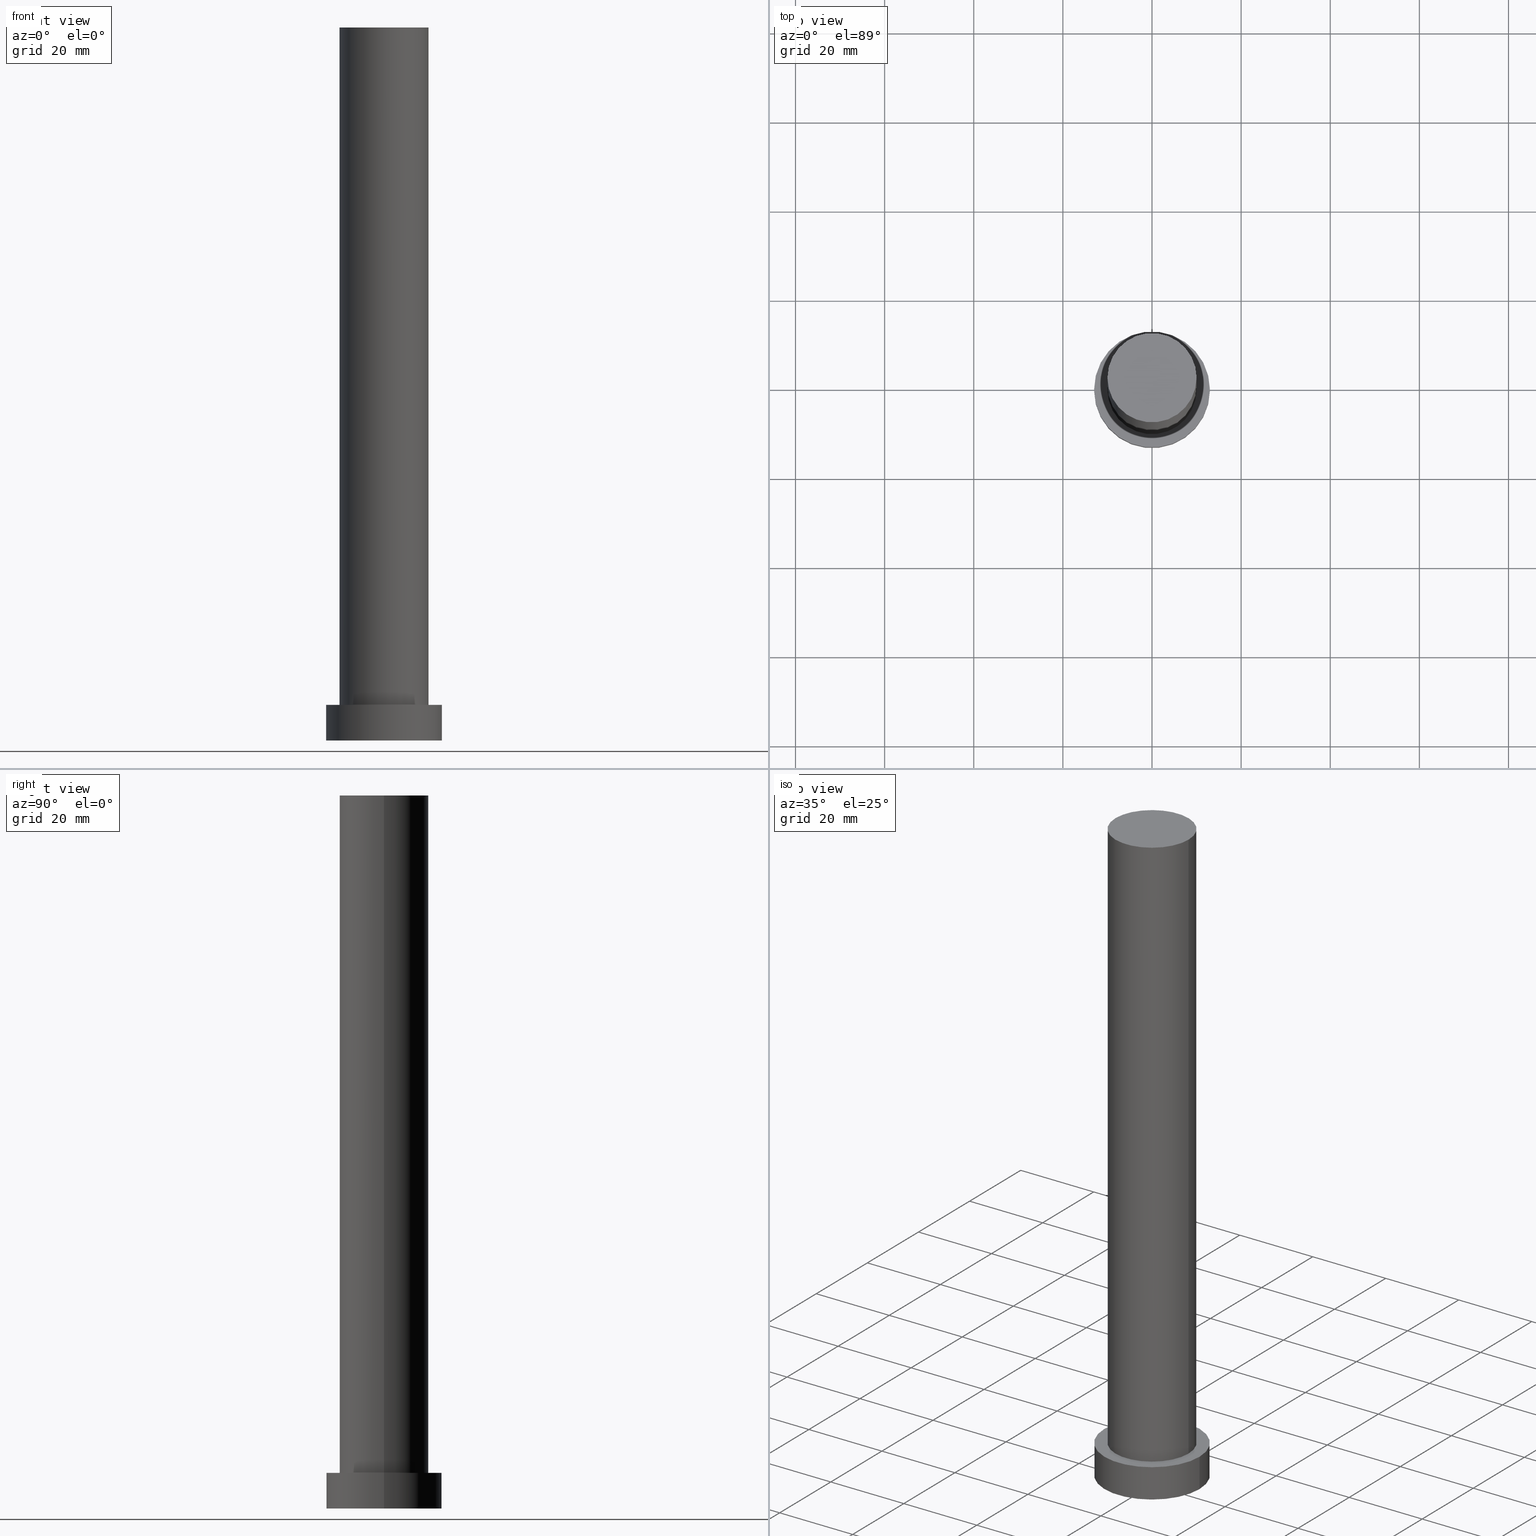
[diagram: canonical four-view strip — front | top / right | iso, engineering-drawing reading convention]
A machine part, canonical four-view strip (front | top / right | iso — engineering-drawing reading convention). The complete STEP part file that produces these views, byte-faithful:
ISO-10303-21;
HEADER;
FILE_DESCRIPTION (( 'STEP AP203' ),
    '1' );
FILE_NAME ('9e28.STEP',
    '2023-02-13T07:34:28',
    ( '' ),
    ( '' ),
    'SwSTEP 2.0',
    'SolidWorks 2019',
    '' );
FILE_SCHEMA (( 'CONFIG_CONTROL_DESIGN' ));
ENDSEC;

DATA;
#1 = CARTESIAN_POINT ( 'NONE',  ( -10.00000000000000000, 0.000000000000000000, 160.0000000000000000 ) ) ;
#2 = CARTESIAN_POINT ( 'NONE',  ( -13.00000000000000178, 0.000000000000000000, 0.000000000000000000 ) ) ;
#3 = ORIENTED_EDGE ( 'NONE', *, *, #37, .T. ) ;
#4 = PERSON_AND_ORGANIZATION_ROLE ( 'design_supplier' ) ;
#5 = PERSON_AND_ORGANIZATION_ROLE ( 'design_owner' ) ;
#6 = PLANE ( 'NONE',  #111 ) ;
#7 = AXIS2_PLACEMENT_3D ( 'NONE', #228, #109, #84 ) ;
#8 = DATE_AND_TIME ( #152, #165 ) ;
#9 = EDGE_CURVE ( 'NONE', #28, #254, #181, .T. ) ;
#10 = UNCERTAINTY_MEASURE_WITH_UNIT (LENGTH_MEASURE( 1.000000000000000082E-05 ), #157, 'distance_accuracy_value', 'NONE');
#11 = FACE_OUTER_BOUND ( 'NONE', #201, .T. ) ;
#12 = PERSON_AND_ORGANIZATION_ROLE ( 'creator' ) ;
#13 = CYLINDRICAL_SURFACE ( 'NONE', #140, 10.00000000000000000 ) ;
#14 = CC_DESIGN_PERSON_AND_ORGANIZATION_ASSIGNMENT ( #166, #12, ( #244 ) ) ;
#15 = CARTESIAN_POINT ( 'NONE',  ( 13.00000000000000178, 1.592040838891559293E-15, 0.000000000000000000 ) ) ;
#16 =( GEOMETRIC_REPRESENTATION_CONTEXT ( 3 ) GLOBAL_UNCERTAINTY_ASSIGNED_CONTEXT ( ( #10 ) ) GLOBAL_UNIT_ASSIGNED_CONTEXT ( ( #157, #65, #21 ) ) REPRESENTATION_CONTEXT ( 'NONE', 'WORKASPACE' ) );
#17 = ADVANCED_FACE ( 'NONE', ( #11 ), #6, .T. ) ;
#18 = APPROVAL_STATUS ( 'not_yet_approved' ) ;
#19 = CARTESIAN_POINT ( 'NONE',  ( -10.00000000000000000, 0.000000000000000000, 160.0000000000000000 ) ) ;
#20 = LOCAL_TIME ( 8, 34, 28.00000000000000000, #119 ) ;
#21 =( NAMED_UNIT ( * ) SI_UNIT ( $, .STERADIAN. ) SOLID_ANGLE_UNIT ( ) );
#22 = CARTESIAN_POINT ( 'NONE',  ( 0.000000000000000000, 0.000000000000000000, 8.000000000000000000 ) ) ;
#23 = DATE_AND_TIME ( #115, #158 ) ;
#24 = VECTOR ( 'NONE', #168, 1000.000000000000000 ) ;
#25 = CARTESIAN_POINT ( 'NONE',  ( 0.000000000000000000, 0.000000000000000000, 8.000000000000000000 ) ) ;
#26 = CC_DESIGN_PERSON_AND_ORGANIZATION_ASSIGNMENT ( #154, #208, ( #250 ) ) ;
#27 = ORIENTED_EDGE ( 'NONE', *, *, #170, .F. ) ;
#28 = VERTEX_POINT ( 'NONE', #184 ) ;
#29 = ADVANCED_FACE ( 'NONE', ( #125 ), #167, .T. ) ;
#30 = APPROVAL_DATE_TIME ( #8, #188 ) ;
#31 = ADVANCED_FACE ( 'NONE', ( #56 ), #13, .T. ) ;
#32 = ORIENTED_EDGE ( 'NONE', *, *, #229, .T. ) ;
#33 = AXIS2_PLACEMENT_3D ( 'NONE', #118, #83, #50 ) ;
#34 = CC_DESIGN_APPROVAL ( #188, ( #117 ) ) ;
#35 = APPLICATION_CONTEXT ( 'configuration controlled 3d designs of mechanical parts and assemblies' ) ;
#36 = DIRECTION ( 'NONE',  ( -1.000000000000000000, 0.000000000000000000, 0.000000000000000000 ) ) ;
#37 = EDGE_CURVE ( 'NONE', #58, #254, #249, .T. ) ;
#38 = CIRCLE ( 'NONE', #176, 10.00000000000000000 ) ;
#39 = MANIFOLD_SOLID_BREP ( 'P�idat vysunut�m3', #126 ) ;
#40 = CALENDAR_DATE ( 2023, 13, 2 ) ;
#41 = PERSON_AND_ORGANIZATION_ROLE ( 'classification_officer' ) ;
#42 = EDGE_LOOP ( 'NONE', ( #120, #62, #51, #230 ) ) ;
#43 = EDGE_CURVE ( 'NONE', #254, #58, #148, .T. ) ;
#44 = DIRECTION ( 'NONE',  ( 0.000000000000000000, 0.000000000000000000, 1.000000000000000000 ) ) ;
#45 = ORIENTED_EDGE ( 'NONE', *, *, #37, .F. ) ;
#46 = CC_DESIGN_PERSON_AND_ORGANIZATION_ASSIGNMENT ( #59, #4, ( #250 ) ) ;
#47 = FACE_OUTER_BOUND ( 'NONE', #42, .T. ) ;
#48 = PRODUCT ( '9e28', '9e28', '', ( #101 ) ) ;
#49 = COORDINATED_UNIVERSAL_TIME_OFFSET ( 1, 0, .AHEAD. ) ;
#50 = DIRECTION ( 'NONE',  ( 1.000000000000000000, 0.000000000000000000, 0.000000000000000000 ) ) ;
#51 = ORIENTED_EDGE ( 'NONE', *, *, #9, .T. ) ;
#52 = APPROVAL_ROLE ( '' ) ;
#53 = EDGE_LOOP ( 'NONE', ( #151, #57, #3, #209 ) ) ;
#54 = APPROVAL ( #74, 'NEUR�EN�' ) ;
#55 = AXIS2_PLACEMENT_3D ( 'NONE', #173, #216, #160 ) ;
#56 = FACE_OUTER_BOUND ( 'NONE', #112, .T. ) ;
#57 = ORIENTED_EDGE ( 'NONE', *, *, #187, .T. ) ;
#58 = VERTEX_POINT ( 'NONE', #15 ) ;
#59 = PERSON_AND_ORGANIZATION ( #97, #90 ) ;
#60 = LOCAL_TIME ( 8, 34, 28.00000000000000000, #207 ) ;
#61 = EDGE_CURVE ( 'NONE', #199, #211, #161, .T. ) ;
#62 = ORIENTED_EDGE ( 'NONE', *, *, #238, .F. ) ;
#63 = DIRECTION ( 'NONE',  ( -0.000000000000000000, -0.000000000000000000, -1.000000000000000000 ) ) ;
#64 = CARTESIAN_POINT ( 'NONE',  ( 0.000000000000000000, 0.000000000000000000, 8.000000000000000000 ) ) ;
#65 =( NAMED_UNIT ( * ) PLANE_ANGLE_UNIT ( ) SI_UNIT ( $, .RADIAN. ) );
#66 = DIRECTION ( 'NONE',  ( -0.000000000000000000, -0.000000000000000000, -1.000000000000000000 ) ) ;
#67 = APPROVAL_STATUS ( 'not_yet_approved' ) ;
#68 = LINE ( 'NONE', #138, #146 ) ;
#69 = CC_DESIGN_DATE_AND_TIME_ASSIGNMENT ( #110, #214, ( #117 ) ) ;
#70 = CARTESIAN_POINT ( 'NONE',  ( 0.000000000000000000, 0.000000000000000000, 160.0000000000000000 ) ) ;
#71 = DIRECTION ( 'NONE',  ( 0.000000000000000000, 0.000000000000000000, 1.000000000000000000 ) ) ;
#72 = CARTESIAN_POINT ( 'NONE',  ( 0.000000000000000000, 0.000000000000000000, 160.0000000000000000 ) ) ;
#73 = ORIENTED_EDGE ( 'NONE', *, *, #222, .T. ) ;
#74 = APPROVAL_STATUS ( 'not_yet_approved' ) ;
#75 = CC_DESIGN_APPROVAL ( #54, ( #250 ) ) ;
#76 = CARTESIAN_POINT ( 'NONE',  ( -10.00000000000000000, 0.000000000000000000, 8.000000000000000000 ) ) ;
#77 = SECURITY_CLASSIFICATION_LEVEL ( 'unclassified' ) ;
#78 = CARTESIAN_POINT ( 'NONE',  ( 0.000000000000000000, 0.000000000000000000, 0.000000000000000000 ) ) ;
#79 = DATE_AND_TIME ( #143, #20 ) ;
#80 = ORIENTED_EDGE ( 'NONE', *, *, #86, .F. ) ;
#81 = APPLICATION_PROTOCOL_DEFINITION ( 'international standard', 'config_control_design', 1994, #35 ) ;
#82 = ADVANCED_FACE ( 'NONE', ( #223 ), #174, .F. ) ;
#83 = DIRECTION ( 'NONE',  ( 0.000000000000000000, 0.000000000000000000, 1.000000000000000000 ) ) ;
#84 = DIRECTION ( 'NONE',  ( 1.000000000000000000, 0.000000000000000000, 0.000000000000000000 ) ) ;
#85 = DATE_TIME_ROLE ( 'creation_date' ) ;
#86 = EDGE_CURVE ( 'NONE', #164, #211, #87, .T. ) ;
#87 = CIRCLE ( 'NONE', #132, 10.00000000000000000 ) ;
#88 = SHAPE_DEFINITION_REPRESENTATION ( #220, #145 ) ;
#89 = DIRECTION ( 'NONE',  ( 1.000000000000000000, 0.000000000000000000, -0.000000000000000000 ) ) ;
#90 = ORGANIZATION ( 'NEUR�EN�', 'NEUR�EN�', '' ) ;
#91 = ORIENTED_EDGE ( 'NONE', *, *, #170, .T. ) ;
#92 = ORIENTED_EDGE ( 'NONE', *, *, #43, .F. ) ;
#93 = COORDINATED_UNIVERSAL_TIME_OFFSET ( 1, 0, .AHEAD. ) ;
#94 = DIRECTION ( 'NONE',  ( 0.000000000000000000, 0.000000000000000000, 1.000000000000000000 ) ) ;
#95 = CARTESIAN_POINT ( 'NONE',  ( 0.000000000000000000, 0.000000000000000000, 8.000000000000000000 ) ) ;
#96 = ORIENTED_EDGE ( 'NONE', *, *, #217, .T. ) ;
#97 = PERSON ( 'NEUR�EN�', 'NEUR�EN�', 'NEUR�EN�', ('NEUR�EN�'), ('NEUR�EN�'), ('NEUR�EN�') ) ;
#98 = DIRECTION ( 'NONE',  ( -1.000000000000000000, 0.000000000000000000, 0.000000000000000000 ) ) ;
#99 = EDGE_CURVE ( 'NONE', #204, #164, #192, .T. ) ;
#100 = DIRECTION ( 'NONE',  ( 1.000000000000000000, 0.000000000000000000, 0.000000000000000000 ) ) ;
#101 = MECHANICAL_CONTEXT ( 'NONE', #245, 'mechanical' ) ;
#102 = EDGE_LOOP ( 'NONE', ( #147, #73 ) ) ;
#103 = CIRCLE ( 'NONE', #104, 10.00000000000000000 ) ;
#104 = AXIS2_PLACEMENT_3D ( 'NONE', #139, #197, #193 ) ;
#105 = CC_DESIGN_DATE_AND_TIME_ASSIGNMENT ( #79, #85, ( #244 ) ) ;
#106 = AXIS2_PLACEMENT_3D ( 'NONE', #72, #206, #227 ) ;
#107 = CARTESIAN_POINT ( 'NONE',  ( -13.00000000000000178, 0.000000000000000000, 8.000000000000000000 ) ) ;
#108 = DIRECTION ( 'NONE',  ( 0.000000000000000000, 0.000000000000000000, 1.000000000000000000 ) ) ;
#109 = DIRECTION ( 'NONE',  ( 0.000000000000000000, 0.000000000000000000, 1.000000000000000000 ) ) ;
#110 = DATE_AND_TIME ( #40, #60 ) ;
#111 = AXIS2_PLACEMENT_3D ( 'NONE', #242, #71, #89 ) ;
#112 = EDGE_LOOP ( 'NONE', ( #27, #149, #96, #205 ) ) ;
#113 = FACE_OUTER_BOUND ( 'NONE', #102, .T. ) ;
#114 = DIRECTION ( 'NONE',  ( 0.000000000000000000, 0.000000000000000000, 1.000000000000000000 ) ) ;
#115 = CALENDAR_DATE ( 2023, 13, 2 ) ;
#116 = DIRECTION ( 'NONE',  ( 0.000000000000000000, 0.000000000000000000, 1.000000000000000000 ) ) ;
#117 = SECURITY_CLASSIFICATION ( '', '', #77 ) ;
#118 = CARTESIAN_POINT ( 'NONE',  ( 0.000000000000000000, 0.000000000000000000, 8.000000000000000000 ) ) ;
#119 = COORDINATED_UNIVERSAL_TIME_OFFSET ( 1, 0, .AHEAD. ) ;
#120 = ORIENTED_EDGE ( 'NONE', *, *, #187, .F. ) ;
#121 = CC_DESIGN_PERSON_AND_ORGANIZATION_ASSIGNMENT ( #239, #5, ( #48 ) ) ;
#122 = ORIENTED_EDGE ( 'NONE', *, *, #61, .F. ) ;
#123 = ADVANCED_FACE ( 'NONE', ( #172, #113 ), #171, .T. ) ;
#124 = CARTESIAN_POINT ( 'NONE',  ( 0.000000000000000000, 0.000000000000000000, 0.000000000000000000 ) ) ;
#125 = FACE_OUTER_BOUND ( 'NONE', #169, .T. ) ;
#126 = CLOSED_SHELL ( 'NONE', ( #31, #144, #131, #123, #82, #29, #17 ) ) ;
#127 = PERSON_AND_ORGANIZATION ( #97, #90 ) ;
#128 = AXIS2_PLACEMENT_3D ( 'NONE', #137, #116, #159 ) ;
#129 = VERTEX_POINT ( 'NONE', #133 ) ;
#130 = CYLINDRICAL_SURFACE ( 'NONE', #191, 13.00000000000000178 ) ;
#131 = ADVANCED_FACE ( 'NONE', ( #47 ), #130, .T. ) ;
#132 = AXIS2_PLACEMENT_3D ( 'NONE', #153, #234, #156 ) ;
#133 = CARTESIAN_POINT ( 'NONE',  ( 13.00000000000000178, 1.592040838891559293E-15, 8.000000000000000000 ) ) ;
#134 = PERSON_AND_ORGANIZATION ( #97, #90 ) ;
#135 = CIRCLE ( 'NONE', #33, 13.00000000000000178 ) ;
#136 = DIRECTION ( 'NONE',  ( 0.000000000000000000, 0.000000000000000000, 1.000000000000000000 ) ) ;
#137 = CARTESIAN_POINT ( 'NONE',  ( 0.000000000000000000, 0.000000000000000000, 160.0000000000000000 ) ) ;
#138 = CARTESIAN_POINT ( 'NONE',  ( 13.00000000000000178, 1.592040838891559293E-15, 8.000000000000000000 ) ) ;
#139 = CARTESIAN_POINT ( 'NONE',  ( 0.000000000000000000, 0.000000000000000000, 160.0000000000000000 ) ) ;
#140 = AXIS2_PLACEMENT_3D ( 'NONE', #70, #247, #36 ) ;
#141 = DIRECTION ( 'NONE',  ( -0.000000000000000000, -0.000000000000000000, -1.000000000000000000 ) ) ;
#142 = CC_DESIGN_SECURITY_CLASSIFICATION ( #117, ( #250 ) ) ;
#143 = CALENDAR_DATE ( 2023, 13, 2 ) ;
#144 = ADVANCED_FACE ( 'NONE', ( #235 ), #255, .T. ) ;
#145 = ADVANCED_BREP_SHAPE_REPRESENTATION ( '9e28', ( #39, #55 ), #16 ) ;
#146 = VECTOR ( 'NONE', #221, 1000.000000000000000 ) ;
#147 = ORIENTED_EDGE ( 'NONE', *, *, #238, .T. ) ;
#148 = CIRCLE ( 'NONE', #212, 13.00000000000000178 ) ;
#149 = ORIENTED_EDGE ( 'NONE', *, *, #61, .T. ) ;
#150 = DATE_AND_TIME ( #200, #198 ) ;
#151 = ORIENTED_EDGE ( 'NONE', *, *, #222, .F. ) ;
#152 = CALENDAR_DATE ( 2023, 13, 2 ) ;
#153 = CARTESIAN_POINT ( 'NONE',  ( 0.000000000000000000, 0.000000000000000000, 8.000000000000000000 ) ) ;
#154 = PERSON_AND_ORGANIZATION ( #97, #90 ) ;
#155 = ORIENTED_EDGE ( 'NONE', *, *, #86, .T. ) ;
#156 = DIRECTION ( 'NONE',  ( 1.000000000000000000, 0.000000000000000000, 0.000000000000000000 ) ) ;
#157 =( LENGTH_UNIT ( ) NAMED_UNIT ( * ) SI_UNIT ( .MILLI., .METRE. ) );
#158 = LOCAL_TIME ( 8, 34, 28.00000000000000000, #49 ) ;
#159 = DIRECTION ( 'NONE',  ( 1.000000000000000000, 0.000000000000000000, 0.000000000000000000 ) ) ;
#160 = DIRECTION ( 'NONE',  ( 1.000000000000000000, 0.000000000000000000, 0.000000000000000000 ) ) ;
#161 = LINE ( 'NONE', #240, #251 ) ;
#162 = DIRECTION ( 'NONE',  ( 1.000000000000000000, 0.000000000000000000, 0.000000000000000000 ) ) ;
#163 = AXIS2_PLACEMENT_3D ( 'NONE', #78, #136, #213 ) ;
#164 = VERTEX_POINT ( 'NONE', #76 ) ;
#165 = LOCAL_TIME ( 8, 34, 28.00000000000000000, #93 ) ;
#166 = PERSON_AND_ORGANIZATION ( #97, #90 ) ;
#167 = CYLINDRICAL_SURFACE ( 'NONE', #106, 10.00000000000000000 ) ;
#168 = DIRECTION ( 'NONE',  ( -0.000000000000000000, -0.000000000000000000, -1.000000000000000000 ) ) ;
#169 = EDGE_LOOP ( 'NONE', ( #122, #186, #179, #155 ) ) ;
#170 = EDGE_CURVE ( 'NONE', #199, #204, #232, .T. ) ;
#171 = PLANE ( 'NONE',  #241 ) ;
#172 = FACE_BOUND ( 'NONE', #246, .T. ) ;
#173 = CARTESIAN_POINT ( 'NONE',  ( 0.000000000000000000, 0.000000000000000000, 0.000000000000000000 ) ) ;
#174 = PLANE ( 'NONE',  #163 ) ;
#175 = CARTESIAN_POINT ( 'NONE',  ( 10.00000000000000000, 1.224646799147353256E-15, 160.0000000000000000 ) ) ;
#176 = AXIS2_PLACEMENT_3D ( 'NONE', #25, #114, #162 ) ;
#177 = CC_DESIGN_APPROVAL ( #196, ( #244 ) ) ;
#178 = COORDINATED_UNIVERSAL_TIME_OFFSET ( 1, 0, .AHEAD. ) ;
#179 = ORIENTED_EDGE ( 'NONE', *, *, #99, .T. ) ;
#180 = VECTOR ( 'NONE', #63, 1000.000000000000000 ) ;
#181 = LINE ( 'NONE', #107, #24 ) ;
#182 = DESIGN_CONTEXT ( 'detailed design', #35, 'design' ) ;
#183 = PRODUCT_RELATED_PRODUCT_CATEGORY ( 'detail', '', ( #48 ) ) ;
#184 = CARTESIAN_POINT ( 'NONE',  ( -13.00000000000000178, 0.000000000000000000, 8.000000000000000000 ) ) ;
#185 = DIRECTION ( 'NONE',  ( 1.000000000000000000, 0.000000000000000000, 0.000000000000000000 ) ) ;
#186 = ORIENTED_EDGE ( 'NONE', *, *, #229, .F. ) ;
#187 = EDGE_CURVE ( 'NONE', #129, #58, #68, .T. ) ;
#188 = APPROVAL ( #18, 'NEUR�EN�' ) ;
#189 = PERSON_AND_ORGANIZATION ( #97, #90 ) ;
#190 = APPROVAL_ROLE ( '' ) ;
#191 = AXIS2_PLACEMENT_3D ( 'NONE', #64, #194, #98 ) ;
#192 = LINE ( 'NONE', #19, #180 ) ;
#193 = DIRECTION ( 'NONE',  ( 1.000000000000000000, 0.000000000000000000, 0.000000000000000000 ) ) ;
#194 = DIRECTION ( 'NONE',  ( -0.000000000000000000, -0.000000000000000000, -1.000000000000000000 ) ) ;
#195 = APPLICATION_PROTOCOL_DEFINITION ( 'international standard', 'config_control_design', 1994, #245 ) ;
#196 = APPROVAL ( #67, 'NEUR�EN�' ) ;
#197 = DIRECTION ( 'NONE',  ( 0.000000000000000000, 0.000000000000000000, 1.000000000000000000 ) ) ;
#198 = LOCAL_TIME ( 8, 34, 28.00000000000000000, #178 ) ;
#199 = VERTEX_POINT ( 'NONE', #175 ) ;
#200 = CALENDAR_DATE ( 2023, 13, 2 ) ;
#201 = EDGE_LOOP ( 'NONE', ( #32, #91 ) ) ;
#202 = APPROVAL_PERSON_ORGANIZATION ( #189, #188, #190 ) ;
#203 = APPROVAL_DATE_TIME ( #23, #196 ) ;
#204 = VERTEX_POINT ( 'NONE', #1 ) ;
#205 = ORIENTED_EDGE ( 'NONE', *, *, #99, .F. ) ;
#206 = DIRECTION ( 'NONE',  ( -0.000000000000000000, -0.000000000000000000, -1.000000000000000000 ) ) ;
#207 = COORDINATED_UNIVERSAL_TIME_OFFSET ( 1, 0, .AHEAD. ) ;
#208 = PERSON_AND_ORGANIZATION_ROLE ( 'creator' ) ;
#209 = ORIENTED_EDGE ( 'NONE', *, *, #9, .F. ) ;
#210 = CARTESIAN_POINT ( 'NONE',  ( 0.000000000000000000, 0.000000000000000000, 8.000000000000000000 ) ) ;
#211 = VERTEX_POINT ( 'NONE', #237 ) ;
#212 = AXIS2_PLACEMENT_3D ( 'NONE', #124, #108, #185 ) ;
#213 = DIRECTION ( 'NONE',  ( 1.000000000000000000, 0.000000000000000000, -0.000000000000000000 ) ) ;
#214 = DATE_TIME_ROLE ( 'classification_date' ) ;
#215 = AXIS2_PLACEMENT_3D ( 'NONE', #210, #66, #218 ) ;
#216 = DIRECTION ( 'NONE',  ( 0.000000000000000000, 0.000000000000000000, 1.000000000000000000 ) ) ;
#217 = EDGE_CURVE ( 'NONE', #211, #164, #38, .T. ) ;
#218 = DIRECTION ( 'NONE',  ( -1.000000000000000000, 0.000000000000000000, 0.000000000000000000 ) ) ;
#219 = APPROVAL_ROLE ( '' ) ;
#220 = PRODUCT_DEFINITION_SHAPE ( 'NONE', 'NONE',  #244 ) ;
#221 = DIRECTION ( 'NONE',  ( -0.000000000000000000, -0.000000000000000000, -1.000000000000000000 ) ) ;
#222 = EDGE_CURVE ( 'NONE', #129, #28, #224, .T. ) ;
#223 = FACE_OUTER_BOUND ( 'NONE', #248, .T. ) ;
#224 = CIRCLE ( 'NONE', #252, 13.00000000000000178 ) ;
#225 = APPROVAL_PERSON_ORGANIZATION ( #236, #196, #219 ) ;
#226 = CC_DESIGN_PERSON_AND_ORGANIZATION_ASSIGNMENT ( #127, #41, ( #117 ) ) ;
#227 = DIRECTION ( 'NONE',  ( -1.000000000000000000, 0.000000000000000000, 0.000000000000000000 ) ) ;
#228 = CARTESIAN_POINT ( 'NONE',  ( 0.000000000000000000, 0.000000000000000000, 0.000000000000000000 ) ) ;
#229 = EDGE_CURVE ( 'NONE', #204, #199, #103, .T. ) ;
#230 = ORIENTED_EDGE ( 'NONE', *, *, #43, .T. ) ;
#231 = APPROVAL_DATE_TIME ( #150, #54 ) ;
#232 = CIRCLE ( 'NONE', #128, 10.00000000000000000 ) ;
#233 = ORIENTED_EDGE ( 'NONE', *, *, #217, .F. ) ;
#234 = DIRECTION ( 'NONE',  ( 0.000000000000000000, 0.000000000000000000, 1.000000000000000000 ) ) ;
#235 = FACE_OUTER_BOUND ( 'NONE', #53, .T. ) ;
#236 = PERSON_AND_ORGANIZATION ( #97, #90 ) ;
#237 = CARTESIAN_POINT ( 'NONE',  ( 10.00000000000000000, 1.224646799147353256E-15, 8.000000000000000000 ) ) ;
#238 = EDGE_CURVE ( 'NONE', #28, #129, #135, .T. ) ;
#239 = PERSON_AND_ORGANIZATION ( #97, #90 ) ;
#240 = CARTESIAN_POINT ( 'NONE',  ( 10.00000000000000000, 1.224646799147353256E-15, 160.0000000000000000 ) ) ;
#241 = AXIS2_PLACEMENT_3D ( 'NONE', #22, #94, #253 ) ;
#242 = CARTESIAN_POINT ( 'NONE',  ( 0.000000000000000000, 0.000000000000000000, 160.0000000000000000 ) ) ;
#243 = APPROVAL_PERSON_ORGANIZATION ( #134, #54, #52 ) ;
#244 = PRODUCT_DEFINITION ( 'NEZN�M�', '', #250, #182 ) ;
#245 = APPLICATION_CONTEXT ( 'configuration controlled 3d designs of mechanical parts and assemblies' ) ;
#246 = EDGE_LOOP ( 'NONE', ( #80, #233 ) ) ;
#247 = DIRECTION ( 'NONE',  ( -0.000000000000000000, -0.000000000000000000, -1.000000000000000000 ) ) ;
#248 = EDGE_LOOP ( 'NONE', ( #92, #45 ) ) ;
#249 = CIRCLE ( 'NONE', #7, 13.00000000000000178 ) ;
#250 = PRODUCT_DEFINITION_FORMATION_WITH_SPECIFIED_SOURCE ( 'LIBOVOLN�', '', #48, .NOT_KNOWN. ) ;
#251 = VECTOR ( 'NONE', #141, 1000.000000000000000 ) ;
#252 = AXIS2_PLACEMENT_3D ( 'NONE', #95, #44, #100 ) ;
#253 = DIRECTION ( 'NONE',  ( 1.000000000000000000, 0.000000000000000000, -0.000000000000000000 ) ) ;
#254 = VERTEX_POINT ( 'NONE', #2 ) ;
#255 = CYLINDRICAL_SURFACE ( 'NONE', #215, 13.00000000000000178 ) ;
ENDSEC;
END-ISO-10303-21;
